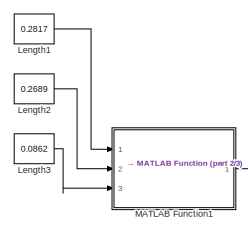
[diagram: root canvas - part 1/3, top center region]
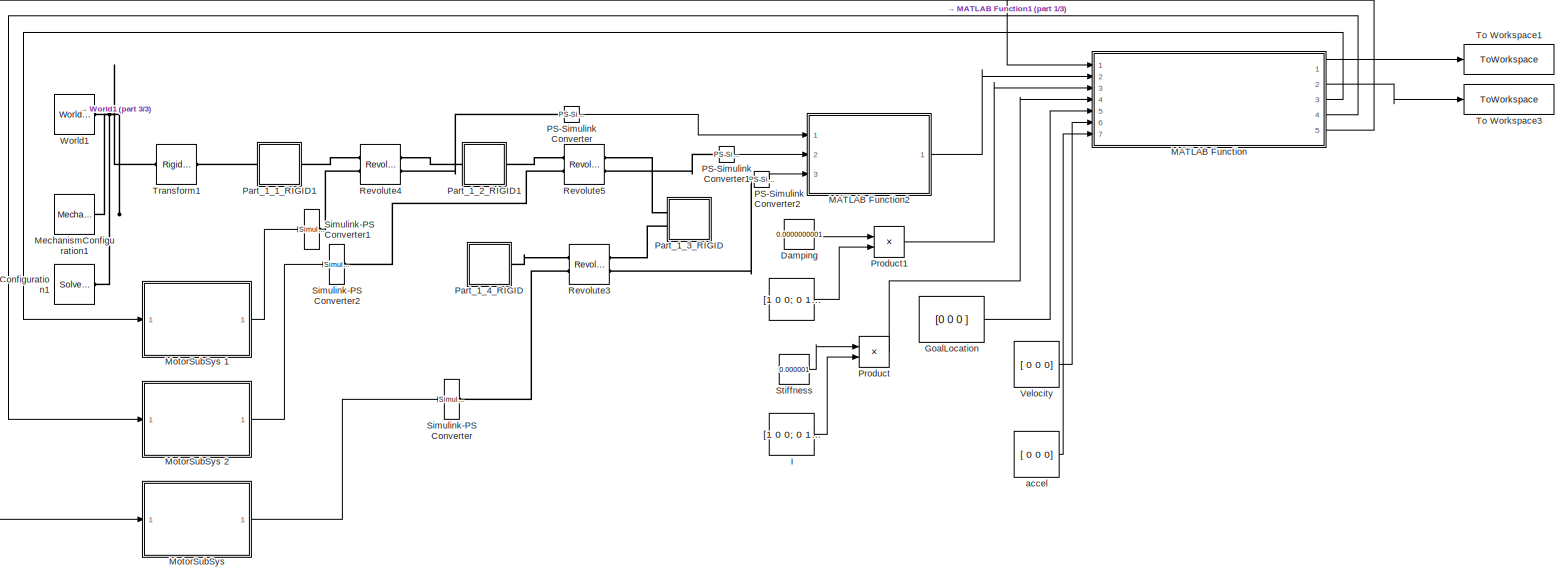
[diagram: root canvas - part 2/3, full width, middle band]
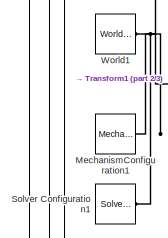
[diagram: root canvas - part 3/3, middle left region]
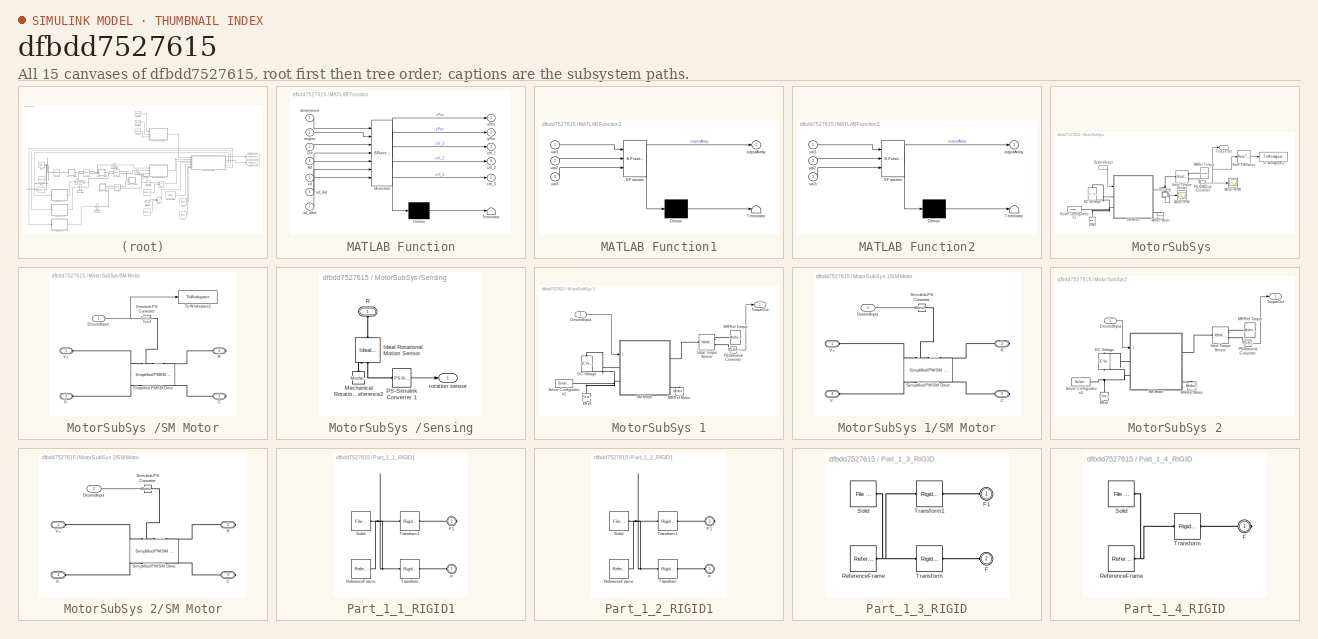
[diagram: thumbnail index - all 15 canvases of the model, root first then tree order]
MODEL slx_dfbdd7527615
KIND model
CONFIG AbsTol = auto
CONFIG EnableMultiTasking = off
CONFIG FixedStep = auto
CONFIG MaxStep = auto
CONFIG MinStep = auto
CONFIG RelTol = 1e-3
CONFIG SampleTimeConstraint = Unconstrained
CONFIG Solver = FixedStepAuto
CONFIG SolverName = FixedStepAuto
CONFIG StartTime = 0
CONFIG StopTime = 100
WORKSPACE source: external: MATLAB File  (data not in archive)
BLOCK [Constant]  
  Value = [1 0 0; 0 1 0; 0 0 1]
  VectorParams1D = off
BLOCK [Constant] Damping 
  Value = 0.0000000001
BLOCK [Constant] GoalLocation
  Value = [0 0 0 ]
BLOCK [Constant] I
  Value = [1 0 0; 0 1 0; 0 0 1]
  VectorParams1D = off
BLOCK [Constant] Length1 
  Value = 0.2817
BLOCK [Constant] Length2 
  Value = 0.2689
BLOCK [Constant] Length3 
  Value = 0.0862
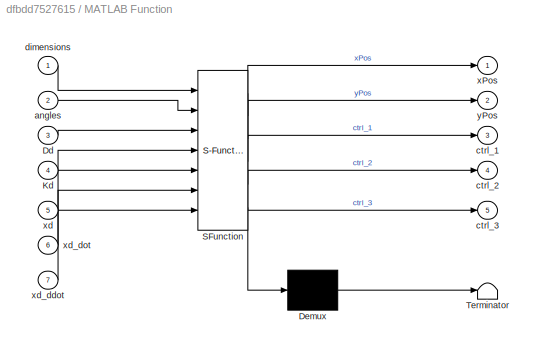
BLOCK [SubSystem] MATLAB Function
  ErrorFcn = Stateflow.Translate.translate
  PermitHierarchicalResolution = ExplicitOnly
  Ports = [7, 5]
  RequestExecContextInheritance = off
  SFBlockType = MATLAB Function
  TreatAsAtomicUnit = on
BLOCK [Demux] MATLAB Function/ Demux 
  Outputs = 1
  Ports = [1, 1]
BLOCK [S-Function] MATLAB Function/ SFunction 
  EnableBusSupport = on
  FunctionName = sf_sfun
  PortCounts = [7 6]
  Ports = [7, 6]
  SFcnIsStateOwnerBlock = off
  SFunctionDeploymentMode = off
  Tag = Stateflow S-Function 2
BLOCK [Terminator] MATLAB Function/ Terminator 
BLOCK [Inport] MATLAB Function/Dd
  IconDisplay = Port number
  Port = 3
BLOCK [Inport] MATLAB Function/Kd
  IconDisplay = Port number
  Port = 4
BLOCK [Inport] MATLAB Function/angles
  IconDisplay = Port number
  Port = 2
BLOCK [Outport] MATLAB Function/ctrl_1
  IconDisplay = Port number
  Port = 3
BLOCK [Outport] MATLAB Function/ctrl_2
  IconDisplay = Port number
  Port = 4
BLOCK [Outport] MATLAB Function/ctrl_3
  IconDisplay = Port number
  Port = 5
BLOCK [Inport] MATLAB Function/dimensions
  IconDisplay = Port number
BLOCK [Outport] MATLAB Function/xPos
  IconDisplay = Port number
BLOCK [Inport] MATLAB Function/xd
  IconDisplay = Port number
  Port = 5
BLOCK [Inport] MATLAB Function/xd_ddot
  IconDisplay = Port number
  Port = 7
BLOCK [Inport] MATLAB Function/xd_dot
  IconDisplay = Port number
  Port = 6
BLOCK [Outport] MATLAB Function/yPos
  IconDisplay = Port number
  Port = 2
BLOCK [SubSystem] MATLAB Function1
  ErrorFcn = Stateflow.Translate.translate
  PermitHierarchicalResolution = ExplicitOnly
  Ports = [3, 1]
  RequestExecContextInheritance = off
  SFBlockType = MATLAB Function
  TreatAsAtomicUnit = on
BLOCK [Demux] MATLAB Function1/ Demux 
  Outputs = 1
  Ports = [1, 1]
BLOCK [S-Function] MATLAB Function1/ SFunction 
  EnableBusSupport = on
  FunctionName = sf_sfun
  PortCounts = [3 2]
  Ports = [3, 2]
  SFcnIsStateOwnerBlock = off
  SFunctionDeploymentMode = off
  Tag = Stateflow S-Function 1
BLOCK [Terminator] MATLAB Function1/ Terminator 
BLOCK [Outport] MATLAB Function1/outputArray
  IconDisplay = Port number
BLOCK [Inport] MATLAB Function1/var1
  IconDisplay = Port number
BLOCK [Inport] MATLAB Function1/var2
  IconDisplay = Port number
  Port = 2
BLOCK [Inport] MATLAB Function1/var3
  IconDisplay = Port number
  Port = 3
BLOCK [SubSystem] MATLAB Function2
  ErrorFcn = Stateflow.Translate.translate
  PermitHierarchicalResolution = ExplicitOnly
  Ports = [3, 1]
  RequestExecContextInheritance = off
  SFBlockType = MATLAB Function
  TreatAsAtomicUnit = on
BLOCK [Demux] MATLAB Function2/ Demux 
  Outputs = 1
  Ports = [1, 1]
BLOCK [S-Function] MATLAB Function2/ SFunction 
  EnableBusSupport = on
  FunctionName = sf_sfun
  PortCounts = [3 2]
  Ports = [3, 2]
  SFcnIsStateOwnerBlock = off
  SFunctionDeploymentMode = off
  Tag = Stateflow S-Function 3
BLOCK [Terminator] MATLAB Function2/ Terminator 
BLOCK [Outport] MATLAB Function2/outputArray
  IconDisplay = Port number
BLOCK [Inport] MATLAB Function2/var1
  IconDisplay = Port number
BLOCK [Inport] MATLAB Function2/var2
  IconDisplay = Port number
  Port = 2
BLOCK [Inport] MATLAB Function2/var3
  IconDisplay = Port number
  Port = 3
BLOCK [Reference] MechanismConfiguration1  REF=sm_lib/Utilities/Mechanism
Configuration
  Ports = [0, 0, 0, 0, 0, 0, 1]
  SourceBlock = sm_lib/Utilities/Mechanism\nConfiguration
  SourceProductBaseCode = MS
  SourceProductName = Simscape Multibody
  SourceType = Mechanism\nConfiguration
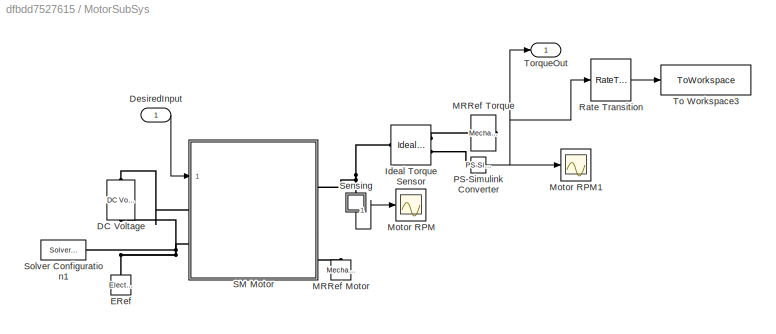
BLOCK [SubSystem] MotorSubSys 
  Ports = [1, 1]
  RequestExecContextInheritance = off
BLOCK [Reference] MotorSubSys /DC Voltage  REF=fl_lib/Electrical/Electrical Sources/DC Voltage Source
  Ports = [0, 0, 0, 0, 0, 1, 1]
  SourceBlock = fl_lib/Electrical/Electrical Sources/DC Voltage Source
  SourceProductBaseCode = SS
  SourceProductName = Simscape
  SourceType = DC Voltage Source
BLOCK [Inport] MotorSubSys /DesiredInput 
  IconDisplay = Port number
BLOCK [Reference] MotorSubSys /ERef  REF=fl_lib/Electrical/Electrical Elements/Electrical Reference
  Ports = [0, 0, 0, 0, 0, 1]
  SourceBlock = fl_lib/Electrical/Electrical Elements/Electrical Reference
  SourceProductBaseCode = SS
  SourceProductName = Simscape
  SourceType = Electrical Reference
BLOCK [Reference] MotorSubSys /Ideal Torque Sensor  REF=fl_lib/Mechanical/Mechanical Sensors/Ideal Torque Sensor
  Ports = [0, 0, 0, 0, 0, 1, 2]
  SourceBlock = fl_lib/Mechanical/Mechanical Sensors/Ideal Torque Sensor
  SourceProductBaseCode = SS
  SourceProductName = Simscape
  SourceType = Ideal Torque Sensor
BLOCK [Reference] MotorSubSys /MRRef Motor  REF=fl_lib/Mechanical/Rotational Elements/Mechanical
Rotational Reference
  Ports = [0, 0, 0, 0, 0, 1]
  SourceBlock = fl_lib/Mechanical/Rotational Elements/Mechanical\nRotational Reference
  SourceProductBaseCode = SS
  SourceProductName = Simscape
  SourceType = Mechanical\nRotational Reference
BLOCK [Reference] MotorSubSys /MRRef Torque  REF=fl_lib/Mechanical/Rotational Elements/Mechanical
Rotational Reference
  Ports = [0, 0, 0, 0, 0, 1]
  SourceBlock = fl_lib/Mechanical/Rotational Elements/Mechanical\nRotational Reference
  SourceProductBaseCode = SS
  SourceProductName = Simscape
  SourceType = Mechanical\nRotational Reference
BLOCK [Scope] MotorSubSys /Motor RPM
  Floating = off
  NumInputPorts = 1
  Ports = [1]
  ScopeSpecificationString = Simulink.scopes.TimeScopeBlockCfg('CurrentConfiguration', extmgr.ConfigurationSet(extmgr.Configuration('Core','General UI',true),extmgr.Configuration('Core','Source UI',true),extmgr.Configuration('Sources','WiredSimulink',true,'DataLoggingSaveFormat','StructureWithTime','DataLoggingLimitDataPoints',true,'DataLoggingDecimation','1','DataLoggingVariableName','ScopeData1'),extmgr.Configuration('Visua...<+1732ch>
BLOCK [Scope] MotorSubSys /Motor RPM1
  Floating = off
  NumInputPorts = 1
  Ports = [1]
  ScopeSpecificationString = Simulink.scopes.TimeScopeBlockCfg('CurrentConfiguration', extmgr.ConfigurationSet(extmgr.Configuration('Core','General UI',true),extmgr.Configuration('Core','Source UI',true),extmgr.Configuration('Sources','WiredSimulink',true,'DataLoggingSaveFormat','StructureWithTime','DataLoggingLimitDataPoints',true,'DataLoggingDecimation','1'),extmgr.Configuration('Visuals','Time Domain',true,'SerializedDispl...<+1695ch>
BLOCK [Reference] MotorSubSys /PS-Simulink Converter  REF=nesl_utility/PS-Simulink
Converter
  Ports = [0, 1, 0, 0, 0, 1]
  SourceBlock = nesl_utility/PS-Simulink\nConverter
  SourceProductBaseCode = SS
  SourceProductName = Simscape
  SourceType = PS-Simulink\nConverter
BLOCK [RateTransition] MotorSubSys /Rate Transition
  OutPortSampleTime = 1e-3
BLOCK [SubSystem] MotorSubSys /SM Motor
  Ports = [1, 0, 0, 0, 0, 2, 2]
  RequestExecContextInheritance = off
  Tag = PublishSubsystem
BLOCK [PMIOPort] MotorSubSys /SM Motor/C
  Port = 3
  Side = Right
BLOCK [Inport] MotorSubSys /SM Motor/DesiredInput 
  IconDisplay = Port number
BLOCK [PMIOPort] MotorSubSys /SM Motor/R
  Port = 2
  Side = Right
BLOCK [Reference] MotorSubSys /SM Motor/Simplified PMSM Drive  REF=ee_lib/Electromechanical/Permanent Magnet/Simplified PMSM
Drive
  Ports = [0, 0, 0, 0, 0, 3, 3]
  SourceBlock = ee_lib/Electromechanical/Permanent Magnet/Simplified PMSM\nDrive
  SourceProductBaseCode = PS
  SourceProductName = Simscape Electrical
  SourceType = Simplified PMSM\nDrive
BLOCK [Reference] MotorSubSys /SM Motor/Simulink-PS Converter  REF=nesl_utility/Simulink-PS
Converter
  Ports = [1, 0, 0, 0, 0, 0, 1]
  SourceBlock = nesl_utility/Simulink-PS\nConverter
  SourceProductBaseCode = SS
  SourceProductName = Simscape
  SourceType = Simulink-PS\nConverter
BLOCK [ToWorkspace] MotorSubSys /SM Motor/To Workspace1
  FixptAsFi = on
  MaxDataPoints = inf
  Ports = [1]
  SampleTime = -1
  VariableName = desiredTorque
BLOCK [PMIOPort] MotorSubSys /SM Motor/V+
  Side = Left
BLOCK [PMIOPort] MotorSubSys /SM Motor/V-
  Port = 4
  Side = Left
BLOCK [SubSystem] MotorSubSys /Sensing
  Ports = [0, 1, 0, 0, 0, 1]
  RequestExecContextInheritance = off
BLOCK [Reference] MotorSubSys /Sensing/Ideal Rotational Motion Sensor  REF=fl_lib/Mechanical/Mechanical Sensors/Ideal Rotational
Motion Sensor
  Ports = [0, 0, 0, 0, 0, 1, 3]
  SourceBlock = fl_lib/Mechanical/Mechanical Sensors/Ideal Rotational\nMotion Sensor
  SourceProductBaseCode = SS
  SourceProductName = Simscape
  SourceType = Ideal Rotational\nMotion Sensor
BLOCK [Reference] MotorSubSys /Sensing/Mechanical Rotational Reference2  REF=fl_lib/Mechanical/Rotational Elements/Mechanical
Rotational Reference
  Ports = [0, 0, 0, 0, 0, 1]
  SourceBlock = fl_lib/Mechanical/Rotational Elements/Mechanical\nRotational Reference
  SourceProductBaseCode = SS
  SourceProductName = Simscape
  SourceType = Mechanical\nRotational Reference
BLOCK [Reference] MotorSubSys /Sensing/PS-Simulink Converter 1  REF=nesl_utility/PS-Simulink
Converter
  Ports = [0, 1, 0, 0, 0, 1]
  SourceBlock = nesl_utility/PS-Simulink\nConverter
  SourceProductBaseCode = SS
  SourceProductName = Simscape
  SourceType = PS-Simulink\nConverter
BLOCK [PMIOPort] MotorSubSys /Sensing/R
  Side = Left
BLOCK [Outport] MotorSubSys /Sensing/rotation sensor 
  IconDisplay = Port number
  VectorParamsAs1DForOutWhenUnconnected = off
BLOCK [Reference] MotorSubSys /Solver Configuration1  REF=nesl_utility/Solver
Configuration
  Ports = [0, 0, 0, 0, 0, 0, 1]
  SourceBlock = nesl_utility/Solver\nConfiguration
  SourceProductBaseCode = SS
  SourceProductName = Simscape
  SourceType = Solver\nConfiguration
BLOCK [ToWorkspace] MotorSubSys /To Workspace3
  FixptAsFi = on
  MaxDataPoints = inf
  Ports = [1]
  SampleTime = -1
  SaveFormat = Structure With Time
  VariableName = normalisedTorque
BLOCK [Outport] MotorSubSys /TorqueOut 
  IconDisplay = Port number
BLOCK [SubSystem] MotorSubSys 1
  Ports = [1, 1]
  RequestExecContextInheritance = off
BLOCK [Reference] MotorSubSys 1/DC Voltage  REF=fl_lib/Electrical/Electrical Sources/DC Voltage Source
  Ports = [0, 0, 0, 0, 0, 1, 1]
  SourceBlock = fl_lib/Electrical/Electrical Sources/DC Voltage Source
  SourceProductBaseCode = SS
  SourceProductName = Simscape
  SourceType = DC Voltage Source
BLOCK [Inport] MotorSubSys 1/DesiredInput 
  IconDisplay = Port number
BLOCK [Reference] MotorSubSys 1/ERef  REF=fl_lib/Electrical/Electrical Elements/Electrical Reference
  Ports = [0, 0, 0, 0, 0, 1]
  SourceBlock = fl_lib/Electrical/Electrical Elements/Electrical Reference
  SourceProductBaseCode = SS
  SourceProductName = Simscape
  SourceType = Electrical Reference
BLOCK [Reference] MotorSubSys 1/Ideal Torque Sensor  REF=fl_lib/Mechanical/Mechanical Sensors/Ideal Torque Sensor
  Ports = [0, 0, 0, 0, 0, 1, 2]
  SourceBlock = fl_lib/Mechanical/Mechanical Sensors/Ideal Torque Sensor
  SourceProductBaseCode = SS
  SourceProductName = Simscape
  SourceType = Ideal Torque Sensor
BLOCK [Reference] MotorSubSys 1/MRRef Motor  REF=fl_lib/Mechanical/Rotational Elements/Mechanical
Rotational Reference
  Ports = [0, 0, 0, 0, 0, 1]
  SourceBlock = fl_lib/Mechanical/Rotational Elements/Mechanical\nRotational Reference
  SourceProductBaseCode = SS
  SourceProductName = Simscape
  SourceType = Mechanical\nRotational Reference
BLOCK [Reference] MotorSubSys 1/MRRef Torque  REF=fl_lib/Mechanical/Rotational Elements/Mechanical
Rotational Reference
  Ports = [0, 0, 0, 0, 0, 1]
  SourceBlock = fl_lib/Mechanical/Rotational Elements/Mechanical\nRotational Reference
  SourceProductBaseCode = SS
  SourceProductName = Simscape
  SourceType = Mechanical\nRotational Reference
BLOCK [Reference] MotorSubSys 1/PS-Simulink Converter  REF=nesl_utility/PS-Simulink
Converter
  Ports = [0, 1, 0, 0, 0, 1]
  SourceBlock = nesl_utility/PS-Simulink\nConverter
  SourceProductBaseCode = SS
  SourceProductName = Simscape
  SourceType = PS-Simulink\nConverter
BLOCK [SubSystem] MotorSubSys 1/SM Motor
  Ports = [1, 0, 0, 0, 0, 2, 2]
  RequestExecContextInheritance = off
  Tag = PublishSubsystem
BLOCK [PMIOPort] MotorSubSys 1/SM Motor/C
  Port = 3
  Side = Right
BLOCK [Inport] MotorSubSys 1/SM Motor/DesiredInput 
  IconDisplay = Port number
BLOCK [PMIOPort] MotorSubSys 1/SM Motor/R
  Port = 2
  Side = Right
BLOCK [Reference] MotorSubSys 1/SM Motor/Simplified PMSM Drive  REF=ee_lib/Electromechanical/Permanent Magnet/Simplified PMSM
Drive
  Ports = [0, 0, 0, 0, 0, 3, 3]
  SourceBlock = ee_lib/Electromechanical/Permanent Magnet/Simplified PMSM\nDrive
  SourceProductBaseCode = PS
  SourceProductName = Simscape Electrical
  SourceType = Simplified PMSM\nDrive
BLOCK [Reference] MotorSubSys 1/SM Motor/Simulink-PS Converter  REF=nesl_utility/Simulink-PS
Converter
  Ports = [1, 0, 0, 0, 0, 0, 1]
  SourceBlock = nesl_utility/Simulink-PS\nConverter
  SourceProductBaseCode = SS
  SourceProductName = Simscape
  SourceType = Simulink-PS\nConverter
BLOCK [PMIOPort] MotorSubSys 1/SM Motor/V+
  Side = Left
BLOCK [PMIOPort] MotorSubSys 1/SM Motor/V-
  Port = 4
  Side = Left
BLOCK [Reference] MotorSubSys 1/Solver Configuration1  REF=nesl_utility/Solver
Configuration
  Ports = [0, 0, 0, 0, 0, 0, 1]
  SourceBlock = nesl_utility/Solver\nConfiguration
  SourceProductBaseCode = SS
  SourceProductName = Simscape
  SourceType = Solver\nConfiguration
BLOCK [Outport] MotorSubSys 1/TorqueOut 
  IconDisplay = Port number
BLOCK [SubSystem] MotorSubSys 2
  Ports = [1, 1]
  RequestExecContextInheritance = off
BLOCK [Reference] MotorSubSys 2/DC Voltage  REF=fl_lib/Electrical/Electrical Sources/DC Voltage Source
  Ports = [0, 0, 0, 0, 0, 1, 1]
  SourceBlock = fl_lib/Electrical/Electrical Sources/DC Voltage Source
  SourceProductBaseCode = SS
  SourceProductName = Simscape
  SourceType = DC Voltage Source
BLOCK [Inport] MotorSubSys 2/DesiredInput 
  IconDisplay = Port number
BLOCK [Reference] MotorSubSys 2/ERef  REF=fl_lib/Electrical/Electrical Elements/Electrical Reference
  Ports = [0, 0, 0, 0, 0, 1]
  SourceBlock = fl_lib/Electrical/Electrical Elements/Electrical Reference
  SourceProductBaseCode = SS
  SourceProductName = Simscape
  SourceType = Electrical Reference
BLOCK [Reference] MotorSubSys 2/Ideal Torque Sensor  REF=fl_lib/Mechanical/Mechanical Sensors/Ideal Torque Sensor
  Ports = [0, 0, 0, 0, 0, 1, 2]
  SourceBlock = fl_lib/Mechanical/Mechanical Sensors/Ideal Torque Sensor
  SourceProductBaseCode = SS
  SourceProductName = Simscape
  SourceType = Ideal Torque Sensor
BLOCK [Reference] MotorSubSys 2/MRRef Motor  REF=fl_lib/Mechanical/Rotational Elements/Mechanical
Rotational Reference
  Ports = [0, 0, 0, 0, 0, 1]
  SourceBlock = fl_lib/Mechanical/Rotational Elements/Mechanical\nRotational Reference
  SourceProductBaseCode = SS
  SourceProductName = Simscape
  SourceType = Mechanical\nRotational Reference
BLOCK [Reference] MotorSubSys 2/MRRef Torque  REF=fl_lib/Mechanical/Rotational Elements/Mechanical
Rotational Reference
  Ports = [0, 0, 0, 0, 0, 1]
  SourceBlock = fl_lib/Mechanical/Rotational Elements/Mechanical\nRotational Reference
  SourceProductBaseCode = SS
  SourceProductName = Simscape
  SourceType = Mechanical\nRotational Reference
BLOCK [Reference] MotorSubSys 2/PS-Simulink Converter  REF=nesl_utility/PS-Simulink
Converter
  Ports = [0, 1, 0, 0, 0, 1]
  SourceBlock = nesl_utility/PS-Simulink\nConverter
  SourceProductBaseCode = SS
  SourceProductName = Simscape
  SourceType = PS-Simulink\nConverter
BLOCK [SubSystem] MotorSubSys 2/SM Motor
  Ports = [1, 0, 0, 0, 0, 2, 2]
  RequestExecContextInheritance = off
  Tag = PublishSubsystem
BLOCK [PMIOPort] MotorSubSys 2/SM Motor/C
  Port = 3
  Side = Right
BLOCK [Inport] MotorSubSys 2/SM Motor/DesiredInput 
  IconDisplay = Port number
BLOCK [PMIOPort] MotorSubSys 2/SM Motor/R
  Port = 2
  Side = Right
BLOCK [Reference] MotorSubSys 2/SM Motor/Simplified PMSM Drive  REF=ee_lib/Electromechanical/Permanent Magnet/Simplified PMSM
Drive
  Ports = [0, 0, 0, 0, 0, 3, 3]
  SourceBlock = ee_lib/Electromechanical/Permanent Magnet/Simplified PMSM\nDrive
  SourceProductBaseCode = PS
  SourceProductName = Simscape Electrical
  SourceType = Simplified PMSM\nDrive
BLOCK [Reference] MotorSubSys 2/SM Motor/Simulink-PS Converter  REF=nesl_utility/Simulink-PS
Converter
  Ports = [1, 0, 0, 0, 0, 0, 1]
  SourceBlock = nesl_utility/Simulink-PS\nConverter
  SourceProductBaseCode = SS
  SourceProductName = Simscape
  SourceType = Simulink-PS\nConverter
BLOCK [PMIOPort] MotorSubSys 2/SM Motor/V+
  Side = Left
BLOCK [PMIOPort] MotorSubSys 2/SM Motor/V-
  Port = 4
  Side = Left
BLOCK [Reference] MotorSubSys 2/Solver Configuration1  REF=nesl_utility/Solver
Configuration
  Ports = [0, 0, 0, 0, 0, 0, 1]
  SourceBlock = nesl_utility/Solver\nConfiguration
  SourceProductBaseCode = SS
  SourceProductName = Simscape
  SourceType = Solver\nConfiguration
BLOCK [Outport] MotorSubSys 2/TorqueOut 
  IconDisplay = Port number
BLOCK [Reference] PS-Simulink Converter  REF=nesl_utility/PS-Simulink
Converter
  Ports = [0, 1, 0, 0, 0, 1]
  SourceBlock = nesl_utility/PS-Simulink\nConverter
  SourceProductBaseCode = SS
  SourceProductName = Simscape
  SourceType = PS-Simulink\nConverter
BLOCK [Reference] PS-Simulink Converter1  REF=nesl_utility/PS-Simulink
Converter
  Ports = [0, 1, 0, 0, 0, 1]
  SourceBlock = nesl_utility/PS-Simulink\nConverter
  SourceProductBaseCode = SS
  SourceProductName = Simscape
  SourceType = PS-Simulink\nConverter
BLOCK [Reference] PS-Simulink Converter2  REF=nesl_utility/PS-Simulink
Converter
  Ports = [0, 1, 0, 0, 0, 1]
  SourceBlock = nesl_utility/PS-Simulink\nConverter
  SourceProductBaseCode = SS
  SourceProductName = Simscape
  SourceType = PS-Simulink\nConverter
BLOCK [SubSystem] Part_1_1_RIGID1
  Ports = [0, 0, 0, 0, 0, 1, 1]
  RequestExecContextInheritance = off
BLOCK [PMIOPort] Part_1_1_RIGID1/F
  Side = Left
BLOCK [PMIOPort] Part_1_1_RIGID1/F1
  Port = 2
  Side = Right
BLOCK [Reference] Part_1_1_RIGID1/ReferenceFrame  REF=sm_lib/Frames and
Transforms/Reference
Frame
  Ports = [0, 0, 0, 0, 0, 0, 1]
  SourceBlock = sm_lib/Frames and\nTransforms/Reference\nFrame
  SourceProductBaseCode = MS
  SourceProductName = Simscape Multibody
  SourceType = Reference\nFrame
BLOCK [Reference] Part_1_1_RIGID1/Solid  REF=sm_lib/Body Elements/File Solid
  Ports = [0, 0, 0, 0, 0, 0, 1]
  SourceBlock = sm_lib/Body Elements/File Solid
  SourceProductBaseCode = MS
  SourceProductName = Simscape Multibody
  SourceType = File Solid
BLOCK [Reference] Part_1_1_RIGID1/Transform  REF=sm_lib/Frames and
Transforms/Rigid
Transform
  Ports = [0, 0, 0, 0, 0, 1, 1]
  SourceBlock = sm_lib/Frames and\nTransforms/Rigid\nTransform
  SourceProductBaseCode = MS
  SourceProductName = Simscape Multibody
  SourceType = Rigid\nTransform
BLOCK [Reference] Part_1_1_RIGID1/Transform1  REF=sm_lib/Frames and
Transforms/Rigid
Transform
  Ports = [0, 0, 0, 0, 0, 1, 1]
  SourceBlock = sm_lib/Frames and\nTransforms/Rigid\nTransform
  SourceProductBaseCode = MS
  SourceProductName = Simscape Multibody
  SourceType = Rigid\nTransform
BLOCK [SubSystem] Part_1_2_RIGID1
  Ports = [0, 0, 0, 0, 0, 1, 1]
  RequestExecContextInheritance = off
BLOCK [PMIOPort] Part_1_2_RIGID1/F
  Side = Left
BLOCK [PMIOPort] Part_1_2_RIGID1/F1
  Port = 2
  Side = Right
BLOCK [Reference] Part_1_2_RIGID1/ReferenceFrame  REF=sm_lib/Frames and
Transforms/Reference
Frame
  Ports = [0, 0, 0, 0, 0, 0, 1]
  SourceBlock = sm_lib/Frames and\nTransforms/Reference\nFrame
  SourceProductBaseCode = MS
  SourceProductName = Simscape Multibody
  SourceType = Reference\nFrame
BLOCK [Reference] Part_1_2_RIGID1/Solid  REF=sm_lib/Body Elements/File Solid
  Ports = [0, 0, 0, 0, 0, 0, 1]
  SourceBlock = sm_lib/Body Elements/File Solid
  SourceProductBaseCode = MS
  SourceProductName = Simscape Multibody
  SourceType = File Solid
BLOCK [Reference] Part_1_2_RIGID1/Transform  REF=sm_lib/Frames and
Transforms/Rigid
Transform
  Ports = [0, 0, 0, 0, 0, 1, 1]
  SourceBlock = sm_lib/Frames and\nTransforms/Rigid\nTransform
  SourceProductBaseCode = MS
  SourceProductName = Simscape Multibody
  SourceType = Rigid\nTransform
BLOCK [Reference] Part_1_2_RIGID1/Transform1  REF=sm_lib/Frames and
Transforms/Rigid
Transform
  Ports = [0, 0, 0, 0, 0, 1, 1]
  SourceBlock = sm_lib/Frames and\nTransforms/Rigid\nTransform
  SourceProductBaseCode = MS
  SourceProductName = Simscape Multibody
  SourceType = Rigid\nTransform
BLOCK [SubSystem] Part_1_3_RIGID
  Ports = [0, 0, 0, 0, 0, 2]
  RequestExecContextInheritance = off
BLOCK [PMIOPort] Part_1_3_RIGID/F
  Port = 2
  Side = Left
BLOCK [PMIOPort] Part_1_3_RIGID/F1
  Side = Left
BLOCK [Reference] Part_1_3_RIGID/ReferenceFrame  REF=sm_lib/Frames and
Transforms/Reference
Frame
  Ports = [0, 0, 0, 0, 0, 0, 1]
  SourceBlock = sm_lib/Frames and\nTransforms/Reference\nFrame
  SourceProductBaseCode = MS
  SourceProductName = Simscape Multibody
  SourceType = Reference\nFrame
BLOCK [Reference] Part_1_3_RIGID/Solid  REF=sm_lib/Body Elements/File Solid
  Ports = [0, 0, 0, 0, 0, 0, 1]
  SourceBlock = sm_lib/Body Elements/File Solid
  SourceProductBaseCode = MS
  SourceProductName = Simscape Multibody
  SourceType = File Solid
BLOCK [Reference] Part_1_3_RIGID/Transform  REF=sm_lib/Frames and
Transforms/Rigid
Transform
  Ports = [0, 0, 0, 0, 0, 1, 1]
  SourceBlock = sm_lib/Frames and\nTransforms/Rigid\nTransform
  SourceProductBaseCode = MS
  SourceProductName = Simscape Multibody
  SourceType = Rigid\nTransform
BLOCK [Reference] Part_1_3_RIGID/Transform1  REF=sm_lib/Frames and
Transforms/Rigid
Transform
  Ports = [0, 0, 0, 0, 0, 1, 1]
  SourceBlock = sm_lib/Frames and\nTransforms/Rigid\nTransform
  SourceProductBaseCode = MS
  SourceProductName = Simscape Multibody
  SourceType = Rigid\nTransform
BLOCK [SubSystem] Part_1_4_RIGID
  Ports = [0, 0, 0, 0, 0, 0, 1]
  RequestExecContextInheritance = off
BLOCK [PMIOPort] Part_1_4_RIGID/F
  Side = Right
BLOCK [Reference] Part_1_4_RIGID/ReferenceFrame  REF=sm_lib/Frames and
Transforms/Reference
Frame
  Ports = [0, 0, 0, 0, 0, 0, 1]
  SourceBlock = sm_lib/Frames and\nTransforms/Reference\nFrame
  SourceProductBaseCode = MS
  SourceProductName = Simscape Multibody
  SourceType = Reference\nFrame
BLOCK [Reference] Part_1_4_RIGID/Solid  REF=sm_lib/Body Elements/File Solid
  Ports = [0, 0, 0, 0, 0, 0, 1]
  SourceBlock = sm_lib/Body Elements/File Solid
  SourceProductBaseCode = MS
  SourceProductName = Simscape Multibody
  SourceType = File Solid
BLOCK [Reference] Part_1_4_RIGID/Transform  REF=sm_lib/Frames and
Transforms/Rigid
Transform
  Ports = [0, 0, 0, 0, 0, 1, 1]
  SourceBlock = sm_lib/Frames and\nTransforms/Rigid\nTransform
  SourceProductBaseCode = MS
  SourceProductName = Simscape Multibody
  SourceType = Rigid\nTransform
BLOCK [Product] Product
  InputSameDT = off
  OutDataTypeStr = Inherit: Inherit via internal rule
  Ports = [2, 1]
  RndMeth = Floor
  SaturateOnIntegerOverflow = off
BLOCK [Product] Product1
  InputSameDT = off
  OutDataTypeStr = Inherit: Inherit via internal rule
  Ports = [2, 1]
  RndMeth = Floor
  SaturateOnIntegerOverflow = off
BLOCK [Reference] Revolute3  REF=sm_lib/Joints/Revolute Joint
  Ports = [0, 0, 0, 0, 0, 2, 2]
  SourceBlock = sm_lib/Joints/Revolute Joint
  SourceProductBaseCode = MS
  SourceProductName = Simscape Multibody
  SourceType = Revolute Joint
BLOCK [Reference] Revolute4  REF=sm_lib/Joints/Revolute Joint
  Ports = [0, 0, 0, 0, 0, 2, 2]
  SourceBlock = sm_lib/Joints/Revolute Joint
  SourceProductBaseCode = MS
  SourceProductName = Simscape Multibody
  SourceType = Revolute Joint
BLOCK [Reference] Revolute5  REF=sm_lib/Joints/Revolute Joint
  Ports = [0, 0, 0, 0, 0, 2, 2]
  SourceBlock = sm_lib/Joints/Revolute Joint
  SourceProductBaseCode = MS
  SourceProductName = Simscape Multibody
  SourceType = Revolute Joint
BLOCK [Reference] Simulink-PS Converter  REF=nesl_utility/Simulink-PS
Converter
  Ports = [1, 0, 0, 0, 0, 0, 1]
  SourceBlock = nesl_utility/Simulink-PS\nConverter
  SourceProductBaseCode = SS
  SourceProductName = Simscape
  SourceType = Simulink-PS\nConverter
BLOCK [Reference] Simulink-PS Converter1  REF=nesl_utility/Simulink-PS
Converter
  Ports = [1, 0, 0, 0, 0, 0, 1]
  SourceBlock = nesl_utility/Simulink-PS\nConverter
  SourceProductBaseCode = SS
  SourceProductName = Simscape
  SourceType = Simulink-PS\nConverter
BLOCK [Reference] Simulink-PS Converter2  REF=nesl_utility/Simulink-PS
Converter
  Ports = [1, 0, 0, 0, 0, 0, 1]
  SourceBlock = nesl_utility/Simulink-PS\nConverter
  SourceProductBaseCode = SS
  SourceProductName = Simscape
  SourceType = Simulink-PS\nConverter
BLOCK [Reference] Solver Configuration1  REF=nesl_utility/Solver
Configuration
  Ports = [0, 0, 0, 0, 0, 0, 1]
  SourceBlock = nesl_utility/Solver\nConfiguration
  SourceProductBaseCode = SS
  SourceProductName = Simscape
  SourceType = Solver\nConfiguration
BLOCK [Constant] Stiffness 
  Value = 0.000001
BLOCK [ToWorkspace] To Workspace1
  FixptAsFi = on
  MaxDataPoints = inf
  Ports = [1]
  SampleTime = -1
  SaveFormat = Structure With Time
  VariableName = xPos
BLOCK [ToWorkspace] To Workspace3
  FixptAsFi = on
  MaxDataPoints = inf
  Ports = [1]
  SampleTime = -1
  SaveFormat = Structure With Time
  VariableName = yPos
BLOCK [Reference] Transform1  REF=sm_lib/Frames and
Transforms/Rigid
Transform
  Ports = [0, 0, 0, 0, 0, 1, 1]
  SourceBlock = sm_lib/Frames and\nTransforms/Rigid\nTransform
  SourceProductBaseCode = MS
  SourceProductName = Simscape Multibody
  SourceType = Rigid\nTransform
BLOCK [Constant] Velocity 
  Value = [ 0 0 0]
BLOCK [Reference] World1  REF=sm_lib/Frames and
Transforms/World Frame
  Ports = [0, 0, 0, 0, 0, 0, 1]
  SourceBlock = sm_lib/Frames and\nTransforms/World Frame
  SourceProductBaseCode = MS
  SourceProductName = Simscape Multibody
  SourceType = World Frame
BLOCK [Constant] accel 
  Value = [ 0 0 0]
LINE  :1 -> Product1:2
LINE Damping :1 -> Product1:1
LINE GoalLocation:1 -> MATLAB Function:5
LINE I:1 -> Product:2
LINE Length1 :1 -> MATLAB Function1:1
LINE Length2 :1 -> MATLAB Function1:2
LINE Length3 :1 -> MATLAB Function1:3
LINE MATLAB Function1:1 -> MATLAB Function:1
LINE MATLAB Function2:1 -> MATLAB Function:2
LINE MATLAB Function:1 -> To Workspace1:1
LINE MATLAB Function:2 -> To Workspace3:1
LINE MATLAB Function:3 -> MotorSubSys 1:1
LINE MATLAB Function:4 -> MotorSubSys 2:1
LINE MATLAB Function:5 -> MotorSubSys :1
LINE MotorSubSys /DesiredInput :1 -> MotorSubSys /SM Motor:1
NET MotorSubSys /PS-Simulink Converter:1 -> MotorSubSys /Motor RPM1:1, MotorSubSys /Rate Transition:1, MotorSubSys /TorqueOut :1
LINE MotorSubSys /Rate Transition:1 -> MotorSubSys /To Workspace3:1
NET MotorSubSys /SM Motor/DesiredInput :1 -> MotorSubSys /SM Motor/Simulink-PS Converter:1, MotorSubSys /SM Motor/To Workspace1:1
LINE MotorSubSys /Sensing/PS-Simulink Converter 1:1 -> MotorSubSys /Sensing/rotation sensor :1
LINE MotorSubSys /Sensing:1 -> MotorSubSys /Motor RPM:1
LINE MotorSubSys 1/DesiredInput :1 -> MotorSubSys 1/SM Motor:1
LINE MotorSubSys 1/PS-Simulink Converter:1 -> MotorSubSys 1/TorqueOut :1
LINE MotorSubSys 1/SM Motor/DesiredInput :1 -> MotorSubSys 1/SM Motor/Simulink-PS Converter:1
LINE MotorSubSys 1:1 -> Simulink-PS Converter1:1
LINE MotorSubSys 2/DesiredInput :1 -> MotorSubSys 2/SM Motor:1
LINE MotorSubSys 2/PS-Simulink Converter:1 -> MotorSubSys 2/TorqueOut :1
LINE MotorSubSys 2/SM Motor/DesiredInput :1 -> MotorSubSys 2/SM Motor/Simulink-PS Converter:1
LINE MotorSubSys 2:1 -> Simulink-PS Converter2:1
LINE MotorSubSys :1 -> Simulink-PS Converter:1
LINE PS-Simulink Converter1:1 -> MATLAB Function2:2
LINE PS-Simulink Converter2:1 -> MATLAB Function2:3
LINE PS-Simulink Converter:1 -> MATLAB Function2:1
LINE Product1:1 -> MATLAB Function:3
LINE Product:1 -> MATLAB Function:4
LINE Stiffness :1 -> Product:1
LINE Velocity :1 -> MATLAB Function:6
LINE accel :1 -> MATLAB Function:7
PNET net1: MechanismConfiguration1:RConn1 -- Solver Configuration1:RConn1 -- Transform1:LConn1 -- World1:RConn1
PLINE MotorSubSys /DC Voltage:LConn1 -- MotorSubSys /SM Motor:LConn1
PNET net2: MotorSubSys /DC Voltage:RConn1 -- MotorSubSys /ERef:LConn1 -- MotorSubSys /SM Motor:LConn2 -- MotorSubSys /Solver Configuration1:RConn1
PNET net3: MotorSubSys /Ideal Torque Sensor:LConn1 -- MotorSubSys /SM Motor:RConn1 -- MotorSubSys /Sensing:LConn1
PLINE MotorSubSys /Ideal Torque Sensor:RConn1 -- MotorSubSys /MRRef Torque:LConn1
PLINE MotorSubSys /Ideal Torque Sensor:RConn2 -- MotorSubSys /PS-Simulink Converter:LConn1
PLINE MotorSubSys /MRRef Motor:LConn1 -- MotorSubSys /SM Motor:RConn2
PLINE MotorSubSys /SM Motor/C:RConn1 -- MotorSubSys /SM Motor/Simplified PMSM Drive:RConn3
PLINE MotorSubSys /SM Motor/R:RConn1 -- MotorSubSys /SM Motor/Simplified PMSM Drive:LConn3
PLINE MotorSubSys /SM Motor/Simplified PMSM Drive:LConn1 -- MotorSubSys /SM Motor/V+:RConn1
PLINE MotorSubSys /SM Motor/Simplified PMSM Drive:LConn2 -- MotorSubSys /SM Motor/Simulink-PS Converter:RConn1
PLINE MotorSubSys /SM Motor/Simplified PMSM Drive:RConn1 -- MotorSubSys /SM Motor/V-:RConn1
PLINE MotorSubSys /Sensing/Ideal Rotational Motion Sensor:LConn1 -- MotorSubSys /Sensing/R:RConn1
PLINE MotorSubSys /Sensing/Ideal Rotational Motion Sensor:RConn1 -- MotorSubSys /Sensing/Mechanical Rotational Reference2:LConn1
PLINE MotorSubSys /Sensing/Ideal Rotational Motion Sensor:RConn2 -- MotorSubSys /Sensing/PS-Simulink Converter 1:LConn1
PLINE MotorSubSys 1/DC Voltage:LConn1 -- MotorSubSys 1/SM Motor:LConn1
PNET net4: MotorSubSys 1/DC Voltage:RConn1 -- MotorSubSys 1/ERef:LConn1 -- MotorSubSys 1/SM Motor:LConn2 -- MotorSubSys 1/Solver Configuration1:RConn1
PLINE MotorSubSys 1/Ideal Torque Sensor:LConn1 -- MotorSubSys 1/SM Motor:RConn1
PLINE MotorSubSys 1/Ideal Torque Sensor:RConn1 -- MotorSubSys 1/MRRef Torque:LConn1
PLINE MotorSubSys 1/Ideal Torque Sensor:RConn2 -- MotorSubSys 1/PS-Simulink Converter:LConn1
PLINE MotorSubSys 1/MRRef Motor:LConn1 -- MotorSubSys 1/SM Motor:RConn2
PLINE MotorSubSys 1/SM Motor/C:RConn1 -- MotorSubSys 1/SM Motor/Simplified PMSM Drive:RConn3
PLINE MotorSubSys 1/SM Motor/R:RConn1 -- MotorSubSys 1/SM Motor/Simplified PMSM Drive:LConn3
PLINE MotorSubSys 1/SM Motor/Simplified PMSM Drive:LConn1 -- MotorSubSys 1/SM Motor/V+:RConn1
PLINE MotorSubSys 1/SM Motor/Simplified PMSM Drive:LConn2 -- MotorSubSys 1/SM Motor/Simulink-PS Converter:RConn1
PLINE MotorSubSys 1/SM Motor/Simplified PMSM Drive:RConn1 -- MotorSubSys 1/SM Motor/V-:RConn1
PLINE MotorSubSys 2/DC Voltage:LConn1 -- MotorSubSys 2/SM Motor:LConn1
PNET net5: MotorSubSys 2/DC Voltage:RConn1 -- MotorSubSys 2/ERef:LConn1 -- MotorSubSys 2/SM Motor:LConn2 -- MotorSubSys 2/Solver Configuration1:RConn1
PLINE MotorSubSys 2/Ideal Torque Sensor:LConn1 -- MotorSubSys 2/SM Motor:RConn1
PLINE MotorSubSys 2/Ideal Torque Sensor:RConn1 -- MotorSubSys 2/MRRef Torque:LConn1
PLINE MotorSubSys 2/Ideal Torque Sensor:RConn2 -- MotorSubSys 2/PS-Simulink Converter:LConn1
PLINE MotorSubSys 2/MRRef Motor:LConn1 -- MotorSubSys 2/SM Motor:RConn2
PLINE MotorSubSys 2/SM Motor/C:RConn1 -- MotorSubSys 2/SM Motor/Simplified PMSM Drive:RConn3
PLINE MotorSubSys 2/SM Motor/R:RConn1 -- MotorSubSys 2/SM Motor/Simplified PMSM Drive:LConn3
PLINE MotorSubSys 2/SM Motor/Simplified PMSM Drive:LConn1 -- MotorSubSys 2/SM Motor/V+:RConn1
PLINE MotorSubSys 2/SM Motor/Simplified PMSM Drive:LConn2 -- MotorSubSys 2/SM Motor/Simulink-PS Converter:RConn1
PLINE MotorSubSys 2/SM Motor/Simplified PMSM Drive:RConn1 -- MotorSubSys 2/SM Motor/V-:RConn1
PLINE PS-Simulink Converter1:LConn1 -- Revolute5:RConn2
PLINE PS-Simulink Converter2:LConn1 -- Revolute3:RConn2
PLINE PS-Simulink Converter:LConn1 -- Revolute4:RConn2
PLINE Part_1_1_RIGID1/F1:RConn1 -- Part_1_1_RIGID1/Transform1:RConn1
PLINE Part_1_1_RIGID1/F:RConn1 -- Part_1_1_RIGID1/Transform:RConn1
PNET net6: Part_1_1_RIGID1/ReferenceFrame:RConn1 -- Part_1_1_RIGID1/Solid:RConn1 -- Part_1_1_RIGID1/Transform1:LConn1 -- Part_1_1_RIGID1/Transform:LConn1
PLINE Part_1_1_RIGID1:LConn1 -- Transform1:RConn1
PLINE Part_1_1_RIGID1:RConn1 -- Revolute4:LConn1
PLINE Part_1_2_RIGID1/F1:RConn1 -- Part_1_2_RIGID1/Transform1:RConn1
PLINE Part_1_2_RIGID1/F:RConn1 -- Part_1_2_RIGID1/Transform:RConn1
PNET net7: Part_1_2_RIGID1/ReferenceFrame:RConn1 -- Part_1_2_RIGID1/Solid:RConn1 -- Part_1_2_RIGID1/Transform1:LConn1 -- Part_1_2_RIGID1/Transform:LConn1
PLINE Part_1_2_RIGID1:LConn1 -- Revolute4:RConn1
PLINE Part_1_2_RIGID1:RConn1 -- Revolute5:LConn1
PLINE Part_1_3_RIGID/F1:RConn1 -- Part_1_3_RIGID/Transform1:RConn1
PLINE Part_1_3_RIGID/F:RConn1 -- Part_1_3_RIGID/Transform:RConn1
PNET net8: Part_1_3_RIGID/ReferenceFrame:RConn1 -- Part_1_3_RIGID/Solid:RConn1 -- Part_1_3_RIGID/Transform1:LConn1 -- Part_1_3_RIGID/Transform:LConn1
PLINE Part_1_3_RIGID:LConn1 -- Revolute5:RConn1
PLINE Part_1_3_RIGID:LConn2 -- Revolute3:RConn1
PLINE Part_1_4_RIGID/F:RConn1 -- Part_1_4_RIGID/Transform:RConn1
PNET net9: Part_1_4_RIGID/ReferenceFrame:RConn1 -- Part_1_4_RIGID/Solid:RConn1 -- Part_1_4_RIGID/Transform:LConn1
PLINE Part_1_4_RIGID:RConn1 -- Revolute3:LConn1
PLINE Revolute3:LConn2 -- Simulink-PS Converter:RConn1
PLINE Revolute4:LConn2 -- Simulink-PS Converter1:RConn1
PLINE Revolute5:LConn2 -- Simulink-PS Converter2:RConn1
note: NET lines group one-source signal fan-out (src -> all destinations, sorted); 1:1 wires keep LINE; PNET lines group multi-terminal physical nets as a canonical sorted terminal list (undirected conserving connections); 2-terminal nets keep the pairwise PLINE form
CHART MATLAB Function1 states=1 transitions=1
  STATE_LABEL 'eML_blk_kernel()'
  STATE_LABEL 'SCRIPT:\nfunction outputArray = collate(var1, var2, var3)\n\noutputArray = [var1,var2,var3];\n\n'
CHART MATLAB Function states=1 transitions=1
  STATE_LABEL 'eML_blk_kernel()'
  STATE_LABEL 'SCRIPT:\nfunction [xPos, yPos, ctrl_1, ctrl_2, ctrl_3] = LinkSimpleImpedanceCtrl(dimensions, angles, Dd, Kd, xd, xd_dot, xd_ddot)\n\nang1 = angles(1);\n%why -ve\nang2 = angles(2);\nang3 = angles(3);\nL1 = dimensions(1);\nL2 = dimensions(2);\nL3 = dimensions(3);\n\n%should i do the -y thing\nxPos = (L1*cos(ang1) + L2*cos(ang1 + ang2) + L3*cos(ang1 + ang2 + ang3));\nyPos = -(L1*sin(ang1) + L2*sin(ang1 + ang2) + ...<+3608ch>'
CHART MATLAB Function2 states=1 transitions=1
  STATE_LABEL 'eML_blk_kernel()'
  STATE_LABEL 'SCRIPT:\nfunction outputArray = collate(var1, var2, var3)\n\noutputArray = [var1,var2,var3];\n\n'
